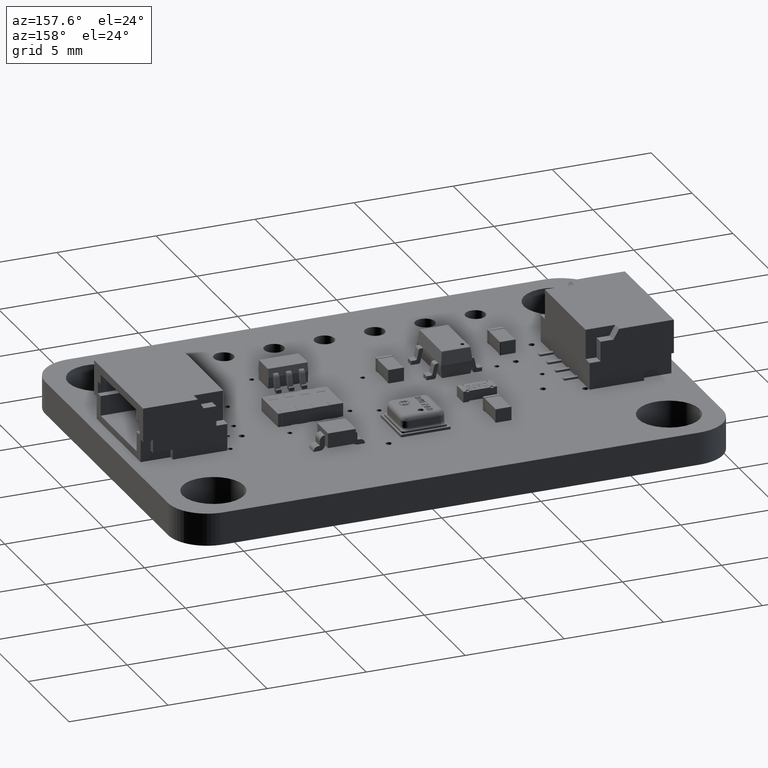
[diagram: clean part render]
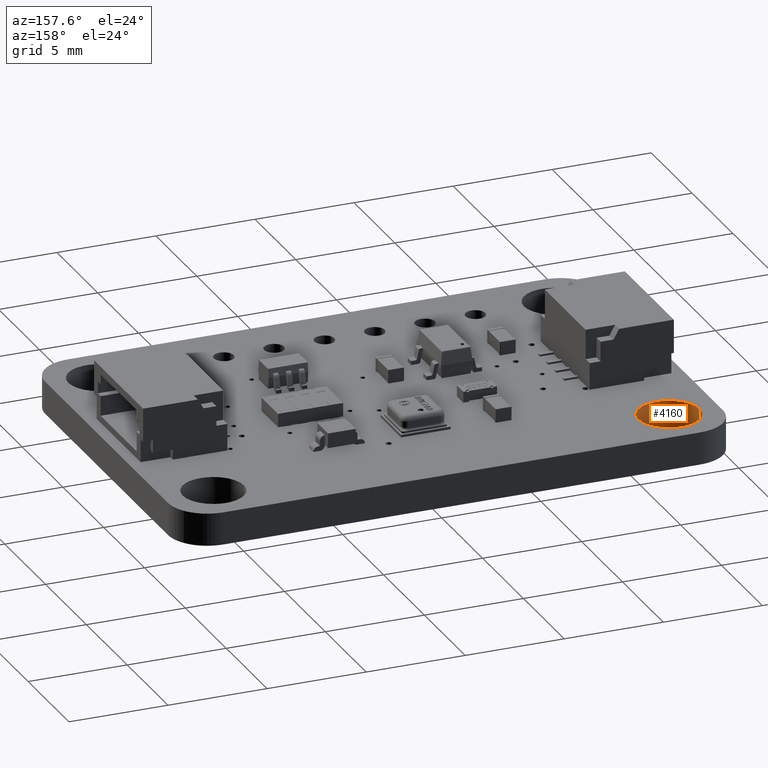
[diagram: same view with one face highlighted and labeled with its STEP entity id]
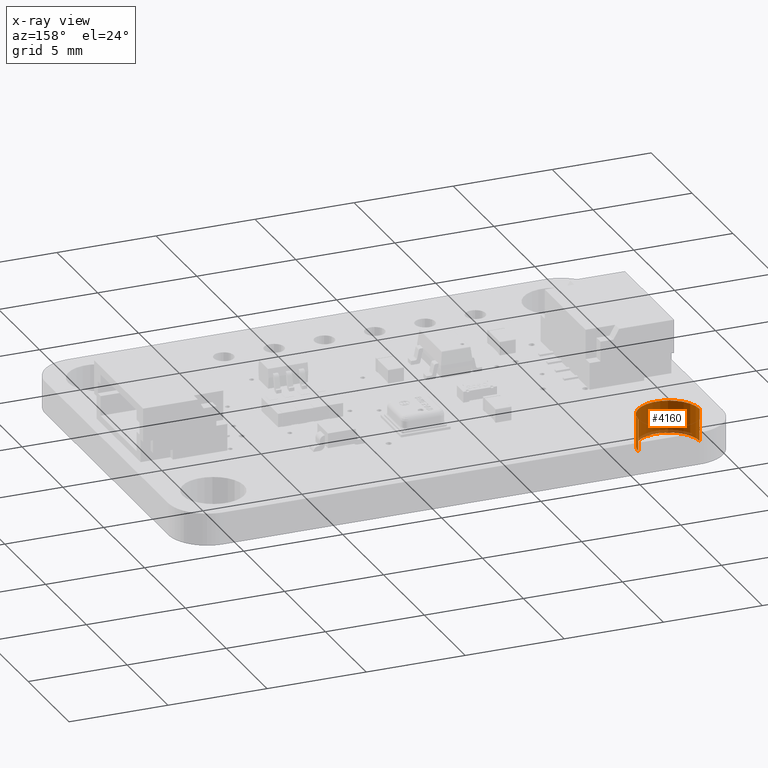
[diagram: x-ray of the same camera — body ghosted, the highlighted face saturated]
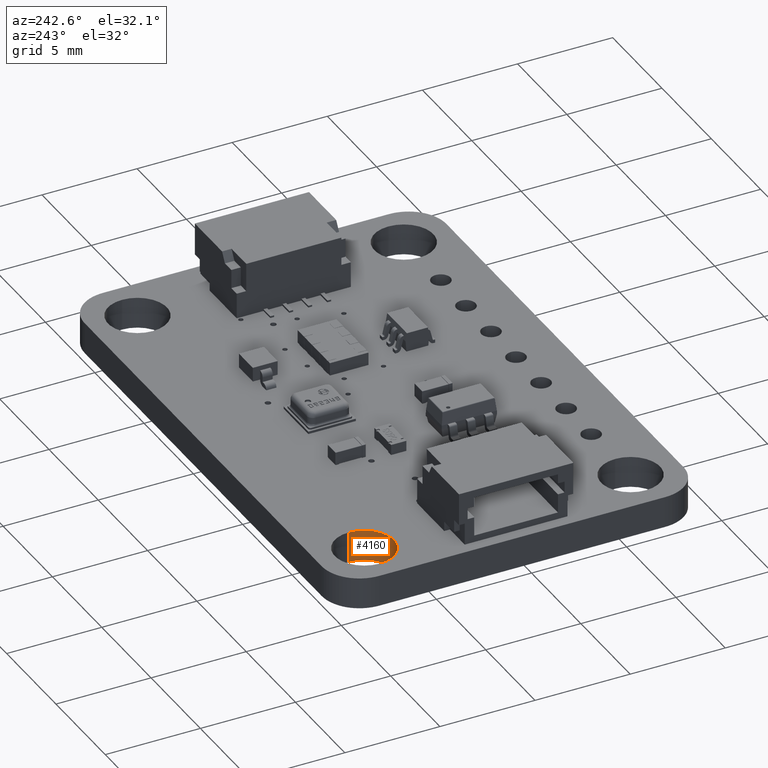
[diagram: same view with one face highlighted and labeled with its STEP entity id]
A machine part, auxiliary view. The second image highlights one B-rep face of the part: STEP entity #4160.
The next image is the same camera in x-ray: the body ghosted, the highlighted face saturated — about 7% of this face is hidden behind the body in this view.
A second angle (auxiliary view) of the same face is appended — the face is thin or edge-on in the first view.
In plain terms, the highlighted cylindrical surface (edge-blend (fillet) strip) has radius 1.55 mm, axis along (-0, -0, -1).
Its self-contained STEP definition (entity closure, byte-faithful):
#4160 = ADVANCED_FACE('',(#4161),#4196,.F.);
#4161 = FACE_BOUND('',#4162,.F.);
#4162 = EDGE_LOOP('',(#4163,#4174,#4182,#4191));
#4163 = ORIENTED_EDGE('',*,*,#4164,.T.);
#4164 = EDGE_CURVE('',#4165,#4167,#4169,.T.);
#4165 = VERTEX_POINT('',#4166);
#4166 = CARTESIAN_POINT('',(0.95,-2.5,-0.82));
#4167 = VERTEX_POINT('',#4168);
#4168 = CARTESIAN_POINT('',(4.05,-2.5,-0.82));
#4169 = CIRCLE('',#4170,1.55);
#4170 = AXIS2_PLACEMENT_3D('',#4171,#4172,#4173);
#4171 = CARTESIAN_POINT('',(2.5,-2.5,-0.82));
#4172 = DIRECTION('',(0.E+000,0.E+000,1.));
#4173 = DIRECTION('',(1.,0.E+000,-0.E+000));
#4174 = ORIENTED_EDGE('',*,*,#4175,.T.);
#4175 = EDGE_CURVE('',#4167,#4176,#4178,.T.);
#4176 = VERTEX_POINT('',#4177);
#4177 = CARTESIAN_POINT('',(4.05,-2.5,0.82));
#4178 = LINE('',#4179,#4180);
#4179 = CARTESIAN_POINT('',(4.05,-2.5,-0.82));
#4180 = VECTOR('',#4181,1.);
#4181 = DIRECTION('',(0.E+000,0.E+000,1.));
#4182 = ORIENTED_EDGE('',*,*,#4183,.F.);
#4183 = EDGE_CURVE('',#4184,#4176,#4186,.T.);
#4184 = VERTEX_POINT('',#4185);
#4185 = CARTESIAN_POINT('',(0.95,-2.5,0.82));
#4186 = CIRCLE('',#4187,1.55);
#4187 = AXIS2_PLACEMENT_3D('',#4188,#4189,#4190);
#4188 = CARTESIAN_POINT('',(2.5,-2.5,0.82));
#4189 = DIRECTION('',(0.E+000,0.E+000,1.));
#4190 = DIRECTION('',(1.,0.E+000,-0.E+000));
#4191 = ORIENTED_EDGE('',*,*,#4192,.T.);
#4192 = EDGE_CURVE('',#4184,#4165,#4193,.T.);
#4193 = B_SPLINE_CURVE_WITH_KNOTS('',1,(#4194,#4195),.UNSPECIFIED.,.F.,
  .F.,(2,2),(-1.64,0.E+000),.PIECEWISE_BEZIER_KNOTS.);
#4194 = CARTESIAN_POINT('',(0.95,-2.5,0.82));
#4195 = CARTESIAN_POINT('',(0.95,-2.5,-0.82));
#4196 = CYLINDRICAL_SURFACE('',#4197,1.55);
#4197 = AXIS2_PLACEMENT_3D('',#4198,#4199,#4200);
#4198 = CARTESIAN_POINT('',(2.5,-2.5,-0.82));
#4199 = DIRECTION('',(-0.E+000,-0.E+000,-1.));
#4200 = DIRECTION('',(1.,0.E+000,-0.E+000));